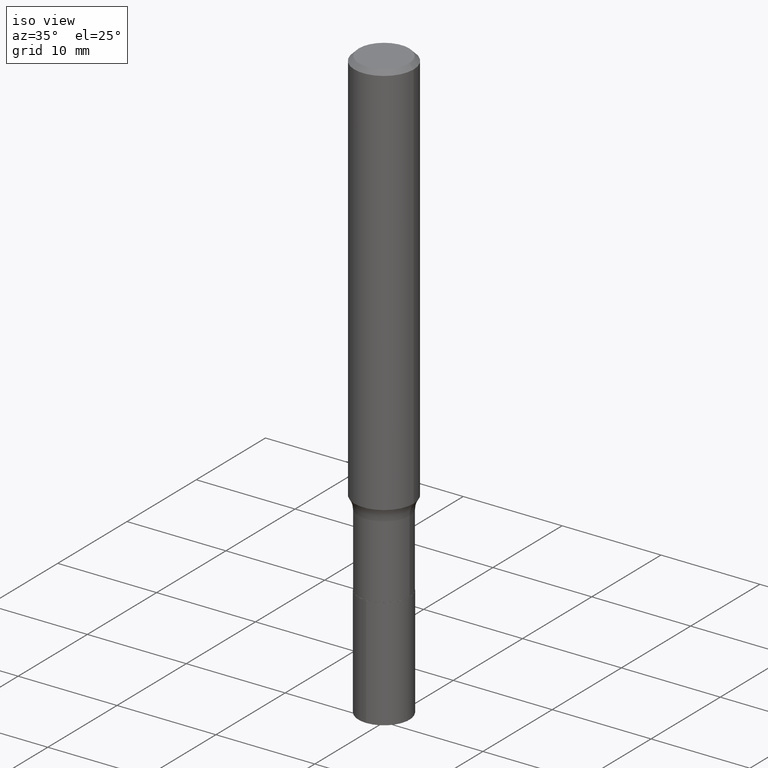
[diagram: clean part render]
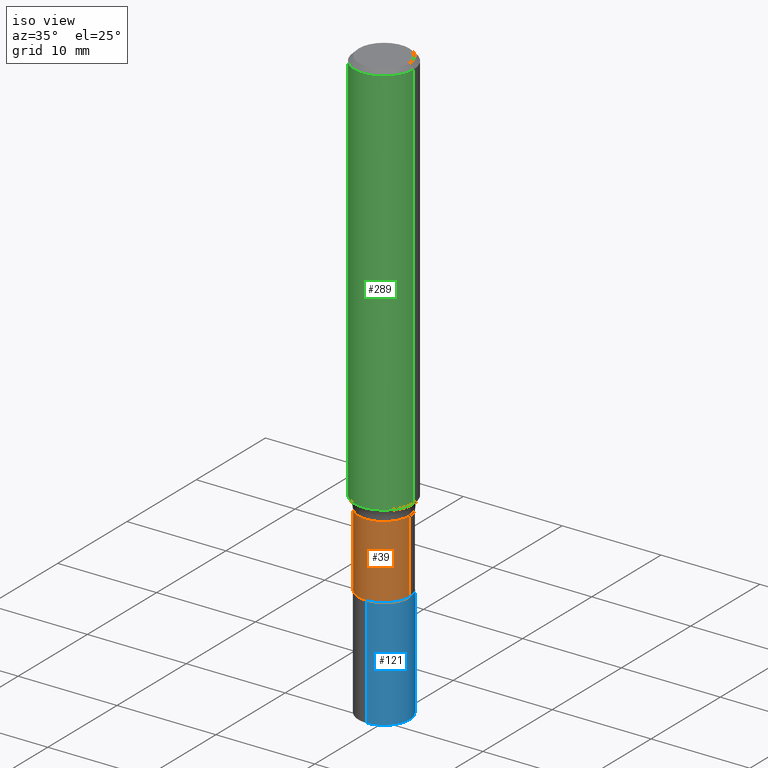
[diagram: same view with three faces highlighted in distinct colors, each labeled with its STEP entity id]
A machine part, iso view with three faces highlighted in distinct colors.
Their STEP definitions:

[orange] entity #39 — the highlighted cylindrical surface (edge-blend (fillet) strip) has radius 2.5794 mm, axis along (-0, 0, 1).
#7 = EDGE_CURVE ( 'NONE', #212, #78, #148, .T. ) ;
#32 = DIRECTION ( 'NONE',  ( -2.445468806185136877E-29, 3.491481338843145188E-15, 1.000000000000000000 ) ) ;
#39 = ADVANCED_FACE ( 'NONE', ( #330 ), #72, .T. ) ;
#50 = DIRECTION ( 'NONE',  ( 1.000000000000000000, -6.982962677686264344E-15, 0.000000000000000000 ) ) ;
#54 = DIRECTION ( 'NONE',  ( -2.445468806185136597E-29, 3.491481338843145583E-15, 1.000000000000000000 ) ) ;
#60 = CARTESIAN_POINT ( 'NONE',  ( -0.1015499999999999736, -5.474775783880549735E-15, -1.628700000000000259 ) ) ;
#65 = VERTEX_POINT ( 'NONE', #336 ) ;
#67 = ORIENTED_EDGE ( 'NONE', *, *, #71, .T. ) ;
#71 = EDGE_CURVE ( 'NONE', #65, #212, #462, .T. ) ;
#72 = CYLINDRICAL_SURFACE ( 'NONE', #351, 0.1015499999999999875 ) ;
#78 = VERTEX_POINT ( 'NONE', #160 ) ;
#86 = AXIS2_PLACEMENT_3D ( 'NONE', #338, #162, #50 ) ;
#96 = EDGE_CURVE ( 'NONE', #324, #78, #406, .T. ) ;
#104 = ORIENTED_EDGE ( 'NONE', *, *, #459, .F. ) ;
#105 = LINE ( 'NONE', #284, #166 ) ;
#110 = VECTOR ( 'NONE', #32, 39.37007874015748143 ) ;
#148 = LINE ( 'NONE', #393, #110 ) ;
#153 = AXIS2_PLACEMENT_3D ( 'NONE', #308, #54, #229 ) ;
#160 = CARTESIAN_POINT ( 'NONE',  ( 0.1015499999999999736, -6.395695516492872910E-15, -1.628700000000000259 ) ) ;
#162 = DIRECTION ( 'NONE',  ( -2.445468806185136597E-29, 3.491481338843145583E-15, 1.000000000000000000 ) ) ;
#166 = VECTOR ( 'NONE', #287, 39.37007874015748143 ) ;
#212 = VERTEX_POINT ( 'NONE', #270 ) ;
#218 = ORIENTED_EDGE ( 'NONE', *, *, #7, .T. ) ;
#229 = DIRECTION ( 'NONE',  ( 1.000000000000000000, -6.982962677686266711E-15, 0.000000000000000000 ) ) ;
#270 = CARTESIAN_POINT ( 'NONE',  ( 0.1015500000000000014, -7.415208067435072015E-15, -1.920700000000000296 ) ) ;
#284 = CARTESIAN_POINT ( 'NONE',  ( -0.1015499999999999875, 7.215561481643816499E-16, -4.995178584153856401E-30 ) ) ;
#287 = DIRECTION ( 'NONE',  ( -2.445468806185136877E-29, 3.491481338843145188E-15, 1.000000000000000000 ) ) ;
#308 = CARTESIAN_POINT ( 'NONE',  ( 3.982935044633732468E-29, -5.686575656573832917E-15, -1.628700000000000259 ) ) ;
#324 = VERTEX_POINT ( 'NONE', #60 ) ;
#325 = DIRECTION ( 'NONE',  ( -2.445468806185136597E-29, 3.491481338843145583E-15, 1.000000000000000000 ) ) ;
#326 = EDGE_LOOP ( 'NONE', ( #104, #67, #218, #420 ) ) ;
#330 = FACE_OUTER_BOUND ( 'NONE', #326, .T. ) ;
#336 = CARTESIAN_POINT ( 'NONE',  ( -0.1015500000000000014, -5.474775783880549735E-15, -1.920700000000000296 ) ) ;
#338 = CARTESIAN_POINT ( 'NONE',  ( 4.697011936039792883E-29, -6.706088207516031233E-15, -1.920700000000000296 ) ) ;
#351 = AXIS2_PLACEMENT_3D ( 'NONE', #357, #325, #398 ) ;
#357 = CARTESIAN_POINT ( 'NONE',  ( 0.000000000000000000, 0.000000000000000000, 0.000000000000000000 ) ) ;
#393 = CARTESIAN_POINT ( 'NONE',  ( 0.1015499999999999875, -7.091198599190402890E-16, 4.951757515820772372E-30 ) ) ;
#398 = DIRECTION ( 'NONE',  ( 1.000000000000000000, -6.982962677686266711E-15, 4.876176775795935793E-29 ) ) ;
#406 = CIRCLE ( 'NONE', #153, 0.1015499999999999736 ) ;
#420 = ORIENTED_EDGE ( 'NONE', *, *, #96, .F. ) ;
#459 = EDGE_CURVE ( 'NONE', #65, #324, #105, .T. ) ;
#462 = CIRCLE ( 'NONE', #86, 0.1015500000000000014 ) ;

[blue] entity #121 — the highlighted cylindrical surface (edge-blend (fillet) strip) has radius 2.5794 mm, axis along (-0, 0, 1).
#8 = FACE_OUTER_BOUND ( 'NONE', #322, .T. ) ;
#33 = AXIS2_PLACEMENT_3D ( 'NONE', #376, #403, #440 ) ;
#56 = AXIS2_PLACEMENT_3D ( 'NONE', #404, #89, #192 ) ;
#57 = CARTESIAN_POINT ( 'NONE',  ( -7.091198599189828994E-16, -0.1015500000000082864, -2.362200000000000077 ) ) ;
#89 = DIRECTION ( 'NONE',  ( -2.426229174433296852E-29, 3.519033586563613878E-15, 1.000000000000000000 ) ) ;
#100 = CARTESIAN_POINT ( 'NONE',  ( 7.215561481644285872E-16, 0.1015499999999932984, -1.921200000000000463 ) ) ;
#121 = ADVANCED_FACE ( 'NONE', ( #8 ), #186, .T. ) ;
#130 = DIRECTION ( 'NONE',  ( -2.426229174433296852E-29, 3.519033586563613878E-15, 1.000000000000000000 ) ) ;
#137 = LINE ( 'NONE', #100, #291 ) ;
#139 = CARTESIAN_POINT ( 'NONE',  ( 7.215561481644341092E-16, 0.1015499999999917580, -2.362200000000000966 ) ) ;
#141 = ORIENTED_EDGE ( 'NONE', *, *, #452, .F. ) ;
#144 = CARTESIAN_POINT ( 'NONE',  ( -7.091198599189934504E-16, -0.1015500000000067182, -1.921200000000000019 ) ) ;
#150 = ORIENTED_EDGE ( 'NONE', *, *, #391, .T. ) ;
#164 = ORIENTED_EDGE ( 'NONE', *, *, #173, .F. ) ;
#173 = EDGE_CURVE ( 'NONE', #364, #255, #283, .T. ) ;
#183 = AXIS2_PLACEMENT_3D ( 'NONE', #312, #419, #394 ) ;
#186 = CYLINDRICAL_SURFACE ( 'NONE', #56, 0.1015500000000000014 ) ;
#192 = DIRECTION ( 'NONE',  ( -6.982962677686266711E-15, -1.000000000000000000, 2.690150658458161520E-15 ) ) ;
#238 = CARTESIAN_POINT ( 'NONE',  ( -7.091198599189934504E-16, -0.1015500000000067182, -1.921200000000000019 ) ) ;
#255 = VERTEX_POINT ( 'NONE', #317 ) ;
#278 = ORIENTED_EDGE ( 'NONE', *, *, #335, .T. ) ;
#283 = CIRCLE ( 'NONE', #33, 0.1015500000000000014 ) ;
#291 = VECTOR ( 'NONE', #130, 39.37007874015748143 ) ;
#312 = CARTESIAN_POINT ( 'NONE',  ( 5.768201736367969540E-29, -8.259727759860008173E-15, -2.362200000000000522 ) ) ;
#315 = VECTOR ( 'NONE', #429, 39.37007874015748143 ) ;
#317 = CARTESIAN_POINT ( 'NONE',  ( 7.215561481644394340E-16, 0.1015499999999932984, -1.921200000000000463 ) ) ;
#322 = EDGE_LOOP ( 'NONE', ( #150, #278, #164, #141 ) ) ;
#335 = EDGE_CURVE ( 'NONE', #451, #255, #137, .T. ) ;
#349 = CIRCLE ( 'NONE', #183, 0.1015500000000000291 ) ;
#364 = VERTEX_POINT ( 'NONE', #238 ) ;
#376 = CARTESIAN_POINT ( 'NONE',  ( 4.698234670442884563E-29, -6.707833948185452736E-15, -1.921200000000000241 ) ) ;
#381 = VERTEX_POINT ( 'NONE', #57 ) ;
#391 = EDGE_CURVE ( 'NONE', #381, #451, #349, .T. ) ;
#394 = DIRECTION ( 'NONE',  ( -6.982962677686265922E-15, -1.000000000000000000, 2.690150658458161125E-15 ) ) ;
#403 = DIRECTION ( 'NONE',  ( -2.426229174433296852E-29, 3.519033586563613878E-15, 1.000000000000000000 ) ) ;
#404 = CARTESIAN_POINT ( 'NONE',  ( 4.698234670442884563E-29, -6.707833948185452736E-15, -1.921200000000000241 ) ) ;
#419 = DIRECTION ( 'NONE',  ( -2.426229174433296852E-29, 3.519033586563613878E-15, 1.000000000000000000 ) ) ;
#429 = DIRECTION ( 'NONE',  ( -2.426229174433296852E-29, 3.519033586563613878E-15, 1.000000000000000000 ) ) ;
#440 = DIRECTION ( 'NONE',  ( -6.982962677686266711E-15, -1.000000000000000000, 2.690150658458161520E-15 ) ) ;
#451 = VERTEX_POINT ( 'NONE', #139 ) ;
#452 = EDGE_CURVE ( 'NONE', #381, #364, #464, .T. ) ;
#464 = LINE ( 'NONE', #144, #315 ) ;

[green] entity #289 — the highlighted cylindrical surface (edge-blend (fillet) strip) has radius 2.9997 mm, axis along (-0, 0, 1).
#19 = CARTESIAN_POINT ( 'NONE',  ( 4.332147990156995868E-31, -6.185159191760670395E-17, -0.01771500000000010913 ) ) ;
#30 = DIRECTION ( 'NONE',  ( 1.000000000000000000, -6.982962677686266711E-15, 0.000000000000000000 ) ) ;
#36 = VERTEX_POINT ( 'NONE', #181 ) ;
#61 = FACE_OUTER_BOUND ( 'NONE', #208, .T. ) ;
#66 = DIRECTION ( 'NONE',  ( -2.445468806185136877E-29, 3.491481338843145188E-15, 1.000000000000000000 ) ) ;
#94 = DIRECTION ( 'NONE',  ( -2.445468806185136597E-29, 3.491481338843145583E-15, 1.000000000000000000 ) ) ;
#95 = CIRCLE ( 'NONE', #439, 0.1180999999999999966 ) ;
#112 = ORIENTED_EDGE ( 'NONE', *, *, #327, .T. ) ;
#118 = AXIS2_PLACEMENT_3D ( 'NONE', #134, #421, #210 ) ;
#134 = CARTESIAN_POINT ( 'NONE',  ( 0.000000000000000000, 0.000000000000000000, 0.000000000000000000 ) ) ;
#136 = ORIENTED_EDGE ( 'NONE', *, *, #309, .F. ) ;
#171 = ORIENTED_EDGE ( 'NONE', *, *, #316, .F. ) ;
#172 = CARTESIAN_POINT ( 'NONE',  ( 3.863780282840086408E-29, -5.516454236016518236E-15, -1.579975288610397932 ) ) ;
#181 = CARTESIAN_POINT ( 'NONE',  ( 0.1180999999999999966, -8.865394841523547570E-16, -0.01771500000000010913 ) ) ;
#208 = EDGE_LOOP ( 'NONE', ( #136, #286, #112, #171 ) ) ;
#210 = DIRECTION ( 'NONE',  ( 1.000000000000000000, -6.982962677686266711E-15, 4.876176775795935793E-29 ) ) ;
#239 = VECTOR ( 'NONE', #423, 39.37007874015748143 ) ;
#251 = CARTESIAN_POINT ( 'NONE',  ( -0.1181000000000002187, -4.677303265083837672E-15, -1.579975288610397932 ) ) ;
#257 = VERTEX_POINT ( 'NONE', #456 ) ;
#280 = VERTEX_POINT ( 'NONE', #453 ) ;
#281 = DIRECTION ( 'NONE',  ( 1.000000000000000000, -6.982962677686268288E-15, 0.000000000000000000 ) ) ;
#286 = ORIENTED_EDGE ( 'NONE', *, *, #356, .T. ) ;
#289 = ADVANCED_FACE ( 'NONE', ( #61 ), #347, .T. ) ;
#309 = EDGE_CURVE ( 'NONE', #417, #280, #352, .T. ) ;
#316 = EDGE_CURVE ( 'NONE', #280, #36, #95, .T. ) ;
#319 = CARTESIAN_POINT ( 'NONE',  ( -0.1181000000000001077, 8.391509709326790846E-16, -5.809262341591049389E-30 ) ) ;
#327 = EDGE_CURVE ( 'NONE', #257, #36, #383, .T. ) ;
#347 = CYLINDRICAL_SURFACE ( 'NONE', #118, 0.1181000000000001077 ) ;
#352 = LINE ( 'NONE', #319, #382 ) ;
#354 = DIRECTION ( 'NONE',  ( -2.445468806185136597E-29, 3.491481338843145583E-15, 1.000000000000000000 ) ) ;
#356 = EDGE_CURVE ( 'NONE', #417, #257, #358, .T. ) ;
#358 = CIRCLE ( 'NONE', #416, 0.1181000000000002048 ) ;
#382 = VECTOR ( 'NONE', #66, 39.37007874015748143 ) ;
#383 = LINE ( 'NONE', #413, #239 ) ;
#413 = CARTESIAN_POINT ( 'NONE',  ( 0.1181000000000001077, -8.246878922347488542E-16, 5.758764772215005345E-30 ) ) ;
#416 = AXIS2_PLACEMENT_3D ( 'NONE', #172, #94, #281 ) ;
#417 = VERTEX_POINT ( 'NONE', #251 ) ;
#421 = DIRECTION ( 'NONE',  ( -2.445468806185136597E-29, 3.491481338843145583E-15, 1.000000000000000000 ) ) ;
#423 = DIRECTION ( 'NONE',  ( -2.445468806185136877E-29, 3.491481338843145188E-15, 1.000000000000000000 ) ) ;
#439 = AXIS2_PLACEMENT_3D ( 'NONE', #19, #354, #30 ) ;
#453 = CARTESIAN_POINT ( 'NONE',  ( -0.1180999999999999966, -1.950001943034382048E-15, -0.01771500000000010913 ) ) ;
#456 = CARTESIAN_POINT ( 'NONE',  ( 0.1181000000000002187, -6.341142128251266498E-15, -1.579975288610397932 ) ) ;